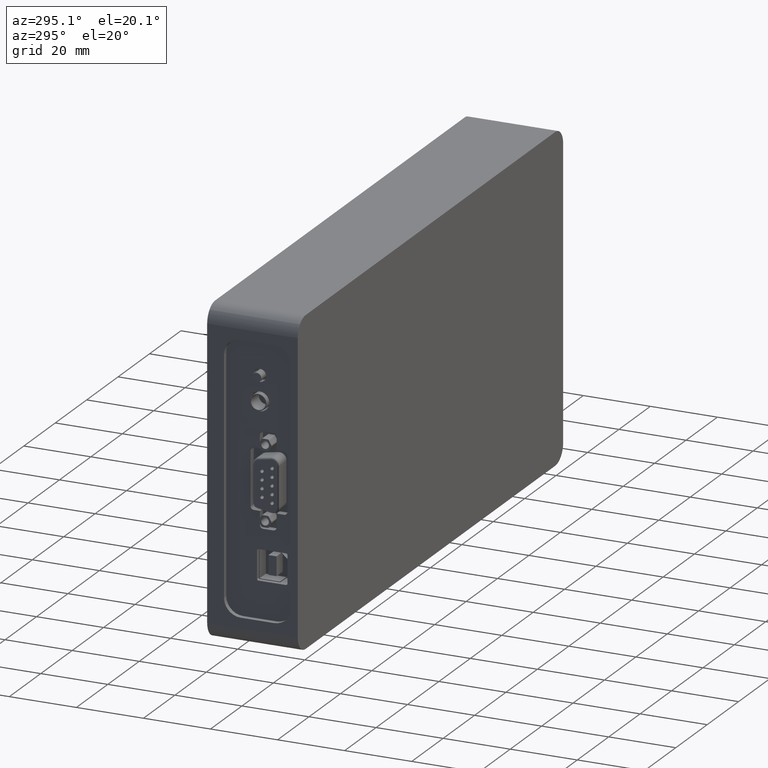
[diagram: clean part render]
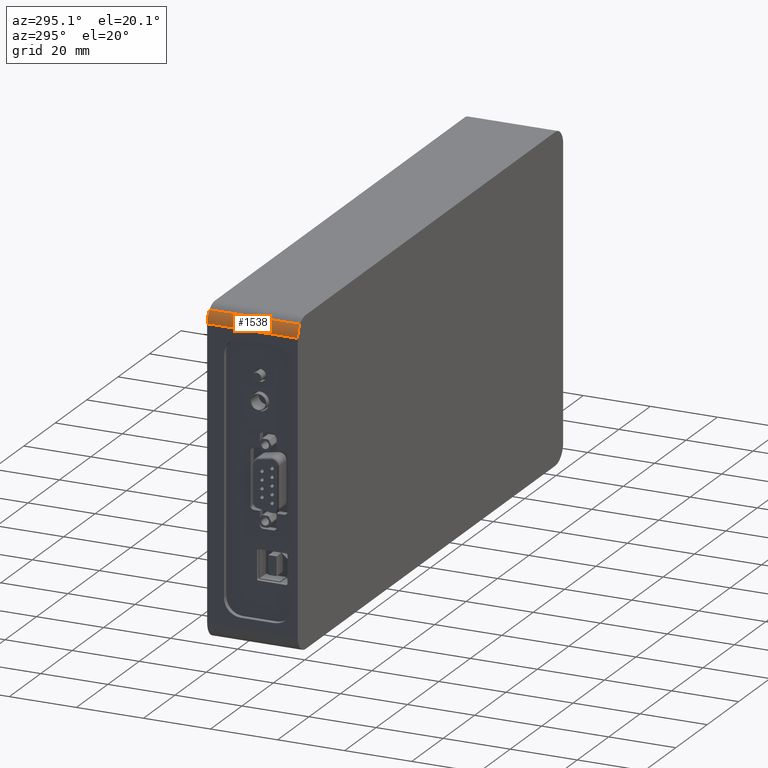
[diagram: same view with one face highlighted and labeled with its STEP entity id]
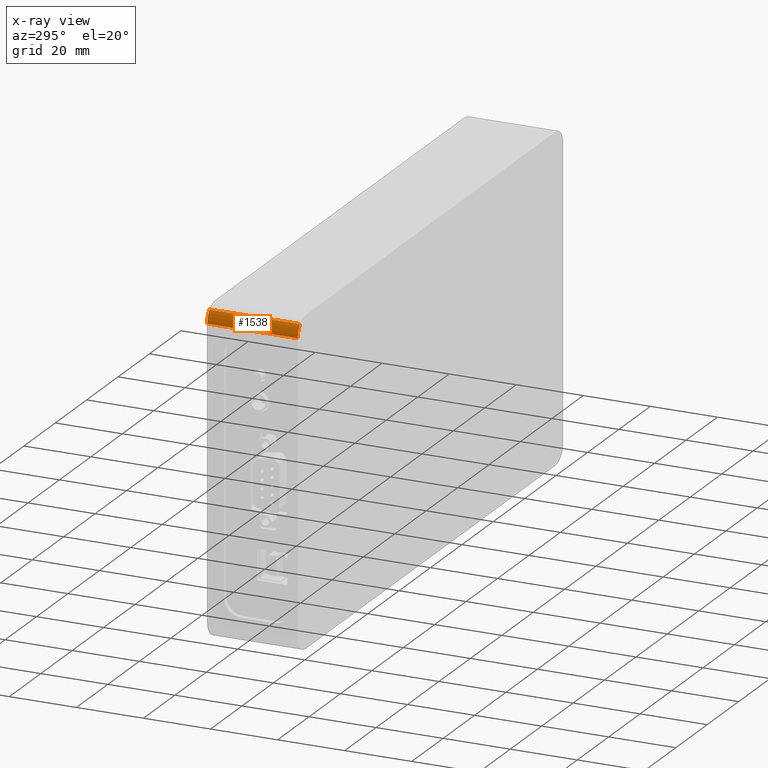
[diagram: x-ray of the same camera — body ghosted, the highlighted face saturated]
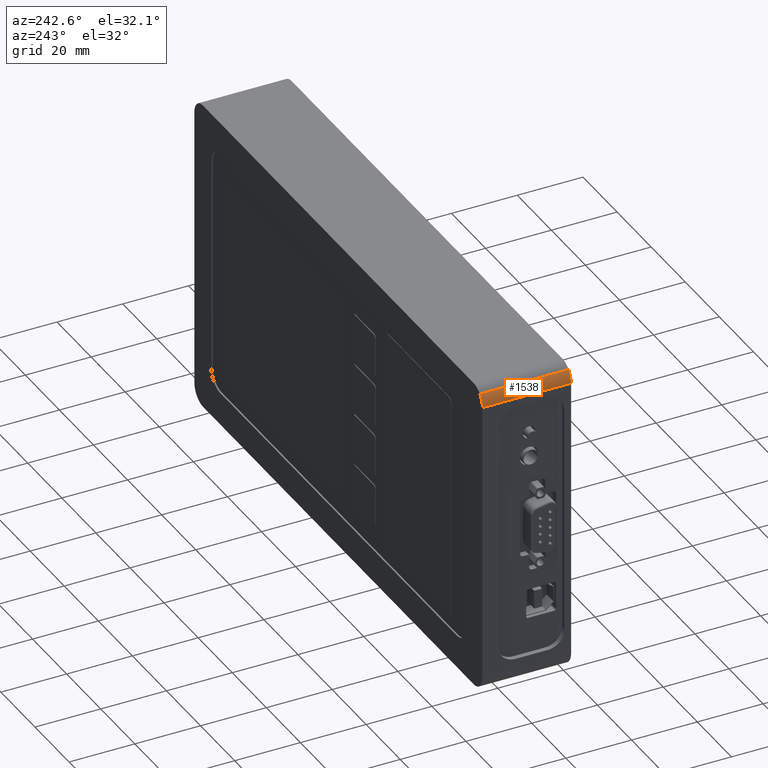
[diagram: same view with one face highlighted and labeled with its STEP entity id]
A machine part, auxiliary view. The second image highlights one B-rep face of the part: STEP entity #1538.
The next image is the same camera in x-ray: the body ghosted, the highlighted face saturated — about 0% of this face is hidden behind the body in this view.
A second angle (auxiliary view) of the same face is appended — the face is thin or edge-on in the first view.
In plain terms, the highlighted cylindrical surface (edge-blend (fillet) strip) has radius 5 mm, axis along (0, 1, 0).
Its self-contained STEP definition (entity closure, byte-faithful):
#47 = EDGE_CURVE ( 'NONE', #1266, #1589, #1302, .T. ) ;
#204 = EDGE_CURVE ( 'NONE', #3375, #8382, #4882, .T. ) ;
#226 = CARTESIAN_POINT ( 'NONE',  ( -83.03553390593272354, 27.00000000000000000, 46.53553390593274486 ) ) ;
#375 = DIRECTION ( 'NONE',  ( 0.000000000000000000, 1.000000000000000000, 0.000000000000000000 ) ) ;
#383 = EDGE_CURVE ( 'NONE', #8382, #1266, #977, .T. ) ;
#642 = AXIS2_PLACEMENT_3D ( 'NONE', #3367, #6160, #8931 ) ;
#674 = DIRECTION ( 'NONE',  ( -0.7071067811865454633, 0.000000000000000000, 0.7071067811865495711 ) ) ;
#806 = CARTESIAN_POINT ( 'NONE',  ( -79.50000000000000000, 0.000000000000000000, 43.00000000000000000 ) ) ;
#977 = LINE ( 'NONE', #8603, #2035 ) ;
#1266 = VERTEX_POINT ( 'NONE', #226 ) ;
#1302 = CIRCLE ( 'NONE', #2917, 4.999999999999997335 ) ;
#1343 = LINE ( 'NONE', #2861, #2704 ) ;
#1353 = DIRECTION ( 'NONE',  ( 0.000000000000000000, 1.000000000000000000, 0.000000000000000000 ) ) ;
#1538 = ADVANCED_FACE ( 'NONE', ( #4293 ), #2774, .T. ) ;
#1589 = VERTEX_POINT ( 'NONE', #5884 ) ;
#2035 = VECTOR ( 'NONE', #375, 1000.000000000000000 ) ;
#2513 = ORIENTED_EDGE ( 'NONE', *, *, #383, .T. ) ;
#2704 = VECTOR ( 'NONE', #2809, 1000.000000000000000 ) ;
#2774 = CYLINDRICAL_SURFACE ( 'NONE', #2995, 4.999999999999997335 ) ;
#2809 = DIRECTION ( 'NONE',  ( 0.000000000000000000, -1.000000000000000000, 0.000000000000000000 ) ) ;
#2861 = CARTESIAN_POINT ( 'NONE',  ( -84.50000000000000000, 0.000000000000000000, 43.00000000000000000 ) ) ;
#2917 = AXIS2_PLACEMENT_3D ( 'NONE', #5352, #5394, #4561 ) ;
#2995 = AXIS2_PLACEMENT_3D ( 'NONE', #806, #1353, #674 ) ;
#3065 = EDGE_CURVE ( 'NONE', #1589, #3375, #1343, .T. ) ;
#3291 = ORIENTED_EDGE ( 'NONE', *, *, #3065, .T. ) ;
#3367 = CARTESIAN_POINT ( 'NONE',  ( -79.50000000000000000, 0.000000000000000000, 43.00000000000000000 ) ) ;
#3375 = VERTEX_POINT ( 'NONE', #4721 ) ;
#4293 = FACE_OUTER_BOUND ( 'NONE', #6007, .T. ) ;
#4561 = DIRECTION ( 'NONE',  ( -0.7071067811865454633, 0.000000000000000000, 0.7071067811865495711 ) ) ;
#4721 = CARTESIAN_POINT ( 'NONE',  ( -84.50000000000000000, 0.000000000000000000, 43.00000000000000000 ) ) ;
#4882 = CIRCLE ( 'NONE', #642, 4.999999999999997335 ) ;
#5352 = CARTESIAN_POINT ( 'NONE',  ( -79.50000000000000000, 27.00000000000000000, 43.00000000000000000 ) ) ;
#5394 = DIRECTION ( 'NONE',  ( 0.000000000000000000, -1.000000000000000000, 0.000000000000000000 ) ) ;
#5884 = CARTESIAN_POINT ( 'NONE',  ( -84.50000000000000000, 27.00000000000000000, 43.00000000000000000 ) ) ;
#6007 = EDGE_LOOP ( 'NONE', ( #8416, #2513, #6442, #3291 ) ) ;
#6160 = DIRECTION ( 'NONE',  ( -2.775557561562899979E-17, 1.000000000000000000, -2.775557561562889810E-17 ) ) ;
#6297 = CARTESIAN_POINT ( 'NONE',  ( -83.03553390593272354, 2.166671187435641210E-31, 46.53553390593274486 ) ) ;
#6442 = ORIENTED_EDGE ( 'NONE', *, *, #47, .T. ) ;
#8382 = VERTEX_POINT ( 'NONE', #6297 ) ;
#8416 = ORIENTED_EDGE ( 'NONE', *, *, #204, .T. ) ;
#8603 = CARTESIAN_POINT ( 'NONE',  ( -83.03553390593272354, 0.000000000000000000, 46.53553390593274486 ) ) ;
#8931 = DIRECTION ( 'NONE',  ( -0.7071067811865454633, 0.000000000000000000, 0.7071067811865495711 ) ) ;